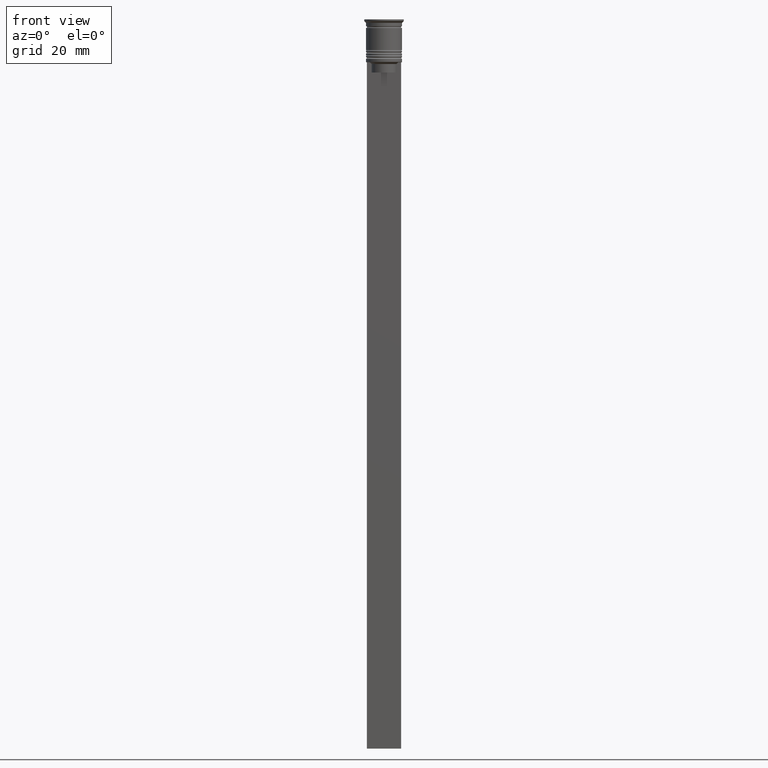
[diagram: clean part render]
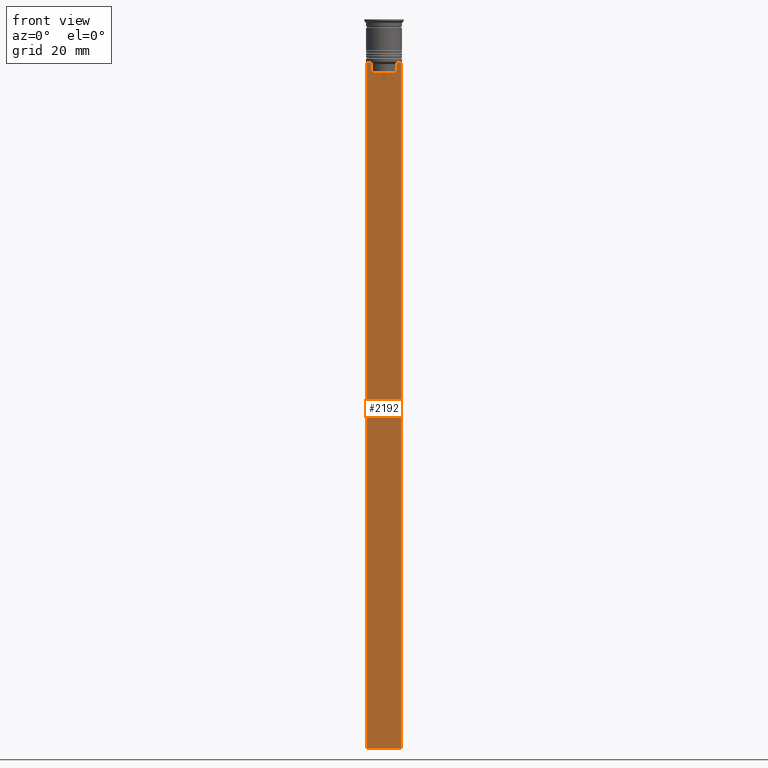
[diagram: same view with one face highlighted and labeled with its STEP entity id]
A machine part, front view. The second image highlights one B-rep face of the part: STEP entity #2192.
In plain terms, the highlighted planar face has unit normal (0, -1, -0).
Its self-contained STEP definition (entity closure, byte-faithful):
#28 = ORIENTED_EDGE ( 'NONE', *, *, #2050, .F. ) ;
#33 = FACE_OUTER_BOUND ( 'NONE', #200, .T. ) ;
#41 = EDGE_CURVE ( 'NONE', #548, #185, #1254, .T. ) ;
#42 = CARTESIAN_POINT ( 'NONE',  ( 5.000000000000000000, -0.5000000000000008882, -212.5000000000000284 ) ) ;
#51 = DIRECTION ( 'NONE',  ( 0.000000000000000000, 0.000000000000000000, -1.000000000000000000 ) ) ;
#67 = CARTESIAN_POINT ( 'NONE',  ( 3.615591237958188042, -0.5000000000000008882, -13.00000000000000178 ) ) ;
#86 = CARTESIAN_POINT ( 'NONE',  ( -4.119769411022908834, -0.5000000000000008882, -12.50000000000000000 ) ) ;
#95 = LINE ( 'NONE', #2289, #2152 ) ;
#104 = ORIENTED_EDGE ( 'NONE', *, *, #2022, .F. ) ;
#113 = LINE ( 'NONE', #841, #136 ) ;
#125 = ORIENTED_EDGE ( 'NONE', *, *, #631, .T. ) ;
#136 = VECTOR ( 'NONE', #1562, 1000.000000000000000 ) ;
#185 = VERTEX_POINT ( 'NONE', #727 ) ;
#192 = ORIENTED_EDGE ( 'NONE', *, *, #729, .F. ) ;
#200 = EDGE_LOOP ( 'NONE', ( #192, #1711, #125, #28, #1414, #1345, #679, #104, #1249, #720 ) ) ;
#206 = CARTESIAN_POINT ( 'NONE',  ( -4.999999999999999112, -0.5000000000000008882, -12.50000000000000000 ) ) ;
#357 = CARTESIAN_POINT ( 'NONE',  ( 3.615591237958188042, -0.5000000000000008882, -13.00000000000000178 ) ) ;
#391 = VERTEX_POINT ( 'NONE', #671 ) ;
#424 = VERTEX_POINT ( 'NONE', #924 ) ;
#434 = VERTEX_POINT ( 'NONE', #206 ) ;
#475 = DIRECTION ( 'NONE',  ( 1.000000000000000000, 0.000000000000000000, 0.000000000000000000 ) ) ;
#501 = VERTEX_POINT ( 'NONE', #1708 ) ;
#523 = CARTESIAN_POINT ( 'NONE',  ( -4.119769411022908834, -0.5000000000000008882, -12.50000000000000000 ) ) ;
#532 = CARTESIAN_POINT ( 'NONE',  ( 5.000000000000000000, -0.5000000000000008882, -2.450124378879110054 ) ) ;
#533 = DIRECTION ( 'NONE',  ( 1.000000000000000000, 0.000000000000000000, 0.000000000000000000 ) ) ;
#543 = PLANE ( 'NONE',  #2235 ) ;
#548 = VERTEX_POINT ( 'NONE', #67 ) ;
#624 = B_SPLINE_CURVE_WITH_KNOTS ( 'NONE', 3,
 ( #86, #1584, #1377, #1176 ),
 .UNSPECIFIED., .F., .F.,
 ( 4, 4 ),
 ( 0.007067514914986629433, 0.007777582239375527978 ),
 .UNSPECIFIED. ) ;
#631 = EDGE_CURVE ( 'NONE', #434, #391, #2065, .T. ) ;
#654 = VERTEX_POINT ( 'NONE', #42 ) ;
#671 = CARTESIAN_POINT ( 'NONE',  ( -4.999999999999999112, -0.5000000000000008882, -212.5000000000000284 ) ) ;
#679 = ORIENTED_EDGE ( 'NONE', *, *, #41, .F. ) ;
#682 = DIRECTION ( 'NONE',  ( 0.000000000000000000, 0.000000000000000000, -1.000000000000000000 ) ) ;
#720 = ORIENTED_EDGE ( 'NONE', *, *, #1237, .F. ) ;
#722 = LINE ( 'NONE', #1450, #1769 ) ;
#727 = CARTESIAN_POINT ( 'NONE',  ( 4.119769411022908834, -0.5000000000000008882, -12.50000000000000000 ) ) ;
#729 = EDGE_CURVE ( 'NONE', #826, #2265, #624, .T. ) ;
#764 = CARTESIAN_POINT ( 'NONE',  ( -3.615591237958188042, -0.5000000000000008882, -13.00000000000000178 ) ) ;
#778 = CARTESIAN_POINT ( 'NONE',  ( 3.951794168112528816, -0.5000000000000008882, -12.66675163073525745 ) ) ;
#808 = EDGE_CURVE ( 'NONE', #434, #826, #2291, .T. ) ;
#826 = VERTEX_POINT ( 'NONE', #523 ) ;
#841 = CARTESIAN_POINT ( 'NONE',  ( 3.615591237958188042, -0.5000000000000008882, 0.000000000000000000 ) ) ;
#895 = VECTOR ( 'NONE', #682, 1000.000000000000000 ) ;
#902 = CARTESIAN_POINT ( 'NONE',  ( 0.000000000000000000, -0.5000000000000008882, -15.50000000000000000 ) ) ;
#924 = CARTESIAN_POINT ( 'NONE',  ( 3.615591237958188486, -0.5000000000000008882, -15.50000000000000000 ) ) ;
#927 = EDGE_CURVE ( 'NONE', #1246, #654, #722, .T. ) ;
#961 = DIRECTION ( 'NONE',  ( 0.000000000000000000, -1.000000000000000000, -0.000000000000000000 ) ) ;
#1067 = DIRECTION ( 'NONE',  ( 1.000000000000000000, 0.000000000000000000, 0.000000000000000000 ) ) ;
#1094 = DIRECTION ( 'NONE',  ( 0.000000000000000000, 0.000000000000000000, -1.000000000000000000 ) ) ;
#1132 = DIRECTION ( 'NONE',  ( 0.000000000000000000, 0.000000000000000000, -1.000000000000000000 ) ) ;
#1166 = EDGE_CURVE ( 'NONE', #185, #1246, #95, .T. ) ;
#1176 = CARTESIAN_POINT ( 'NONE',  ( -3.615591237958188042, -0.5000000000000008882, -13.00000000000000178 ) ) ;
#1190 = VECTOR ( 'NONE', #1067, 1000.000000000000000 ) ;
#1237 = EDGE_CURVE ( 'NONE', #2265, #501, #2144, .T. ) ;
#1246 = VERTEX_POINT ( 'NONE', #2172 ) ;
#1249 = ORIENTED_EDGE ( 'NONE', *, *, #1755, .F. ) ;
#1254 = B_SPLINE_CURVE_WITH_KNOTS ( 'NONE', 3,
 ( #357, #1279, #778, #2033 ),
 .UNSPECIFIED., .F., .F.,
 ( 4, 4 ),
 ( 0.01745179617248909451, 0.01816207215777257411 ),
 .UNSPECIFIED. ) ;
#1279 = CARTESIAN_POINT ( 'NONE',  ( 3.783746406711540278, -0.5000000000000008882, -12.83343003979123509 ) ) ;
#1341 = CARTESIAN_POINT ( 'NONE',  ( -4.999999999999999112, -0.5000000000000008882, -2.450124378879110054 ) ) ;
#1345 = ORIENTED_EDGE ( 'NONE', *, *, #1166, .F. ) ;
#1377 = CARTESIAN_POINT ( 'NONE',  ( -3.783746449387932476, -0.5000000000000008882, -12.83342999751715752 ) ) ;
#1386 = CARTESIAN_POINT ( 'NONE',  ( 5.000000000000000000, -0.5000000000000008882, -12.50000000000000000 ) ) ;
#1390 = DIRECTION ( 'NONE',  ( -1.000000000000000000, 0.000000000000000000, 0.000000000000000000 ) ) ;
#1411 = LINE ( 'NONE', #1436, #1464 ) ;
#1414 = ORIENTED_EDGE ( 'NONE', *, *, #927, .F. ) ;
#1436 = CARTESIAN_POINT ( 'NONE',  ( 5.000000000000000000, -0.5000000000000008882, -212.5000000000000284 ) ) ;
#1450 = CARTESIAN_POINT ( 'NONE',  ( 5.000000000000000000, -0.5000000000000008882, -2.450124378879110054 ) ) ;
#1464 = VECTOR ( 'NONE', #1390, 1000.000000000000000 ) ;
#1562 = DIRECTION ( 'NONE',  ( -0.000000000000000000, -0.000000000000000000, 1.000000000000000000 ) ) ;
#1584 = CARTESIAN_POINT ( 'NONE',  ( -3.951794205566887985, -0.5000000000000008882, -12.66675159355373914 ) ) ;
#1642 = VECTOR ( 'NONE', #51, 1000.000000000000000 ) ;
#1708 = CARTESIAN_POINT ( 'NONE',  ( -3.615591237958188486, -0.5000000000000008882, -15.50000000000000000 ) ) ;
#1711 = ORIENTED_EDGE ( 'NONE', *, *, #808, .F. ) ;
#1755 = EDGE_CURVE ( 'NONE', #501, #424, #1795, .T. ) ;
#1769 = VECTOR ( 'NONE', #1094, 1000.000000000000000 ) ;
#1795 = LINE ( 'NONE', #902, #2045 ) ;
#1960 = CARTESIAN_POINT ( 'NONE',  ( -3.615591237958188042, -0.5000000000000008882, 0.000000000000000000 ) ) ;
#2022 = EDGE_CURVE ( 'NONE', #424, #548, #113, .T. ) ;
#2033 = CARTESIAN_POINT ( 'NONE',  ( 4.119769411022908834, -0.5000000000000008882, -12.50000000000000000 ) ) ;
#2045 = VECTOR ( 'NONE', #533, 1000.000000000000000 ) ;
#2050 = EDGE_CURVE ( 'NONE', #654, #391, #1411, .T. ) ;
#2065 = LINE ( 'NONE', #1341, #1642 ) ;
#2144 = LINE ( 'NONE', #1960, #895 ) ;
#2152 = VECTOR ( 'NONE', #475, 1000.000000000000000 ) ;
#2172 = CARTESIAN_POINT ( 'NONE',  ( 5.000000000000000000, -0.5000000000000008882, -12.50000000000000000 ) ) ;
#2192 = ADVANCED_FACE ( 'NONE', ( #33 ), #543, .T. ) ;
#2235 = AXIS2_PLACEMENT_3D ( 'NONE', #532, #961, #1132 ) ;
#2265 = VERTEX_POINT ( 'NONE', #764 ) ;
#2289 = CARTESIAN_POINT ( 'NONE',  ( 5.000000000000000000, -0.5000000000000008882, -12.50000000000000000 ) ) ;
#2291 = LINE ( 'NONE', #1386, #1190 ) ;